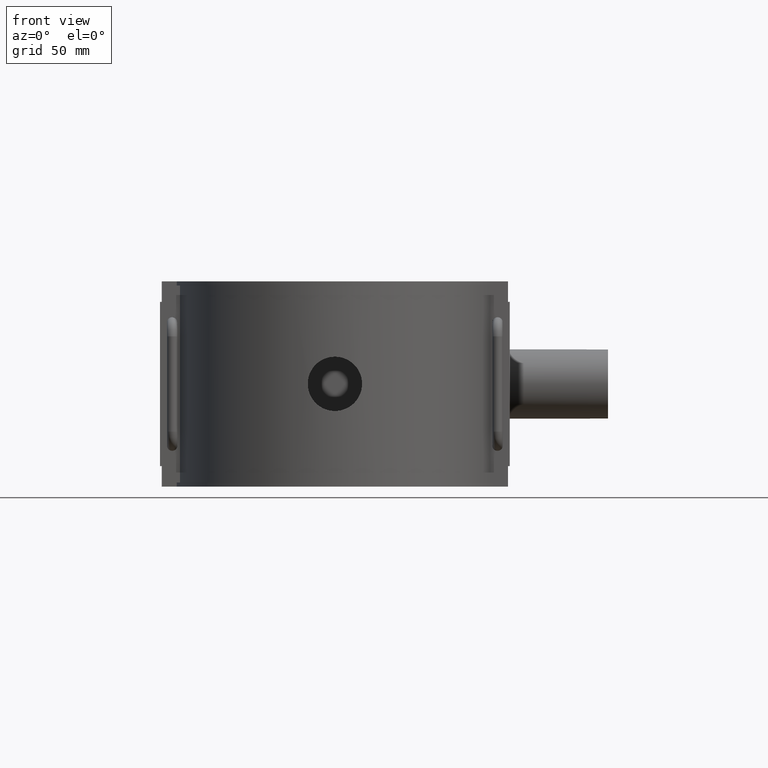
[diagram: clean part render]
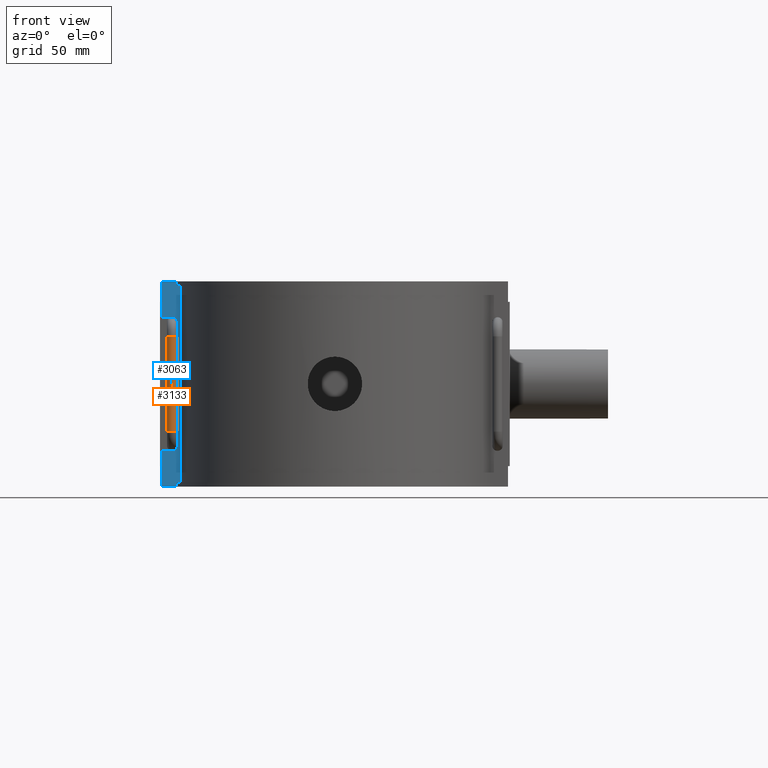
[diagram: same view with the hole feature highlighted: cylindrical wall and planar end face, labeled with their STEP entity ids]
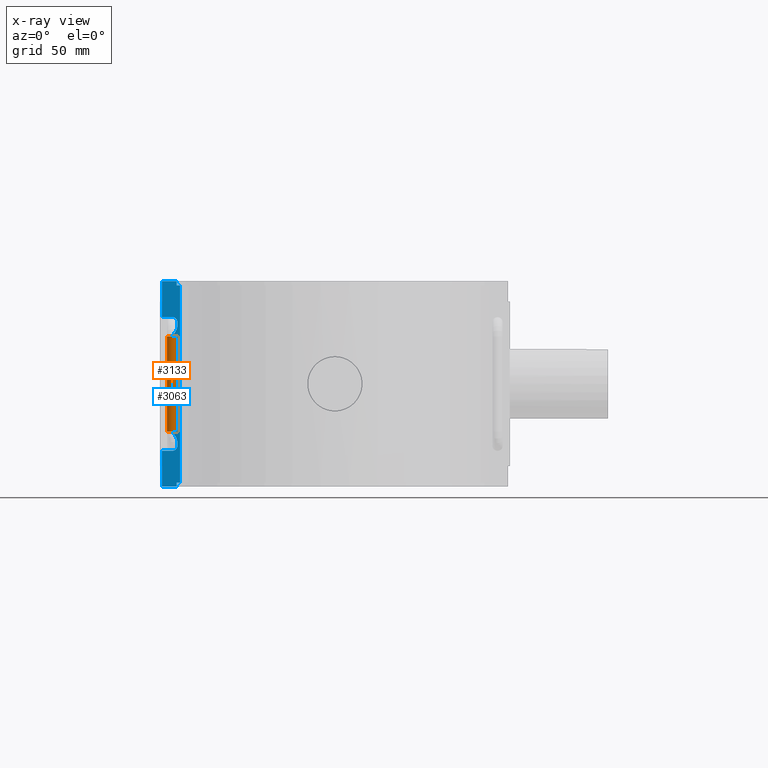
[diagram: x-ray of the same camera — body ghosted, the hole faces saturated]
A machine part, front view. The highlighted faces form one hole feature of diameter 6 mm: the cylindrical wall (entity #3133, orange) and its adjacent planar end face (entity #3063, blue) — they share a circular edge in the B-rep.
The next image is the same camera in x-ray (body ghosted, the hole faces saturated) — the bore reads through the body.
Wall:
#114=LINE('',#5230,#393);
#393=VECTOR('',#3730,54.7999999999999);
#776=CIRCLE('',#3362,3.);
#780=CIRCLE('',#3367,3.);
#986=FACE_OUTER_BOUND('',#1204,.T.);
#1204=EDGE_LOOP('',(#2647,#2648,#2649,#2650));
#1422=VERTEX_POINT('',#5216);
#1423=VERTEX_POINT('',#5229);
#1758=EDGE_CURVE('',#1423,#1422,#114,.T.);
#1921=EDGE_CURVE('',#1423,#1423,#776,.T.);
#1931=EDGE_CURVE('',#1422,#1422,#780,.T.);
#2647=ORIENTED_EDGE('',*,*,#1931,.F.);
#2648=ORIENTED_EDGE('',*,*,#1758,.F.);
#2649=ORIENTED_EDGE('',*,*,#1921,.T.);
#2650=ORIENTED_EDGE('',*,*,#1758,.T.);
#2997=CYLINDRICAL_SURFACE('',#3393,3.);
#3133=ADVANCED_FACE('',(#986),#2997,.T.);
#3362=AXIS2_PLACEMENT_3D('',#5945,#4000,#4001);
#3367=AXIS2_PLACEMENT_3D('',#6023,#4010,#4011);
#3393=AXIS2_PLACEMENT_3D('',#6106,#4076,#4077);
#3730=DIRECTION('',(0.,3.24152707919754E-16,1.));
#4000=DIRECTION('center_axis',(0.,6.12323399573677E-17,1.));
#4001=DIRECTION('ref_axis',(1.,0.,0.));
#4010=DIRECTION('center_axis',(0.,6.12323399573677E-17,1.));
#4011=DIRECTION('ref_axis',(1.,0.,0.));
#4076=DIRECTION('center_axis',(0.,3.24152707919754E-16,1.));
#4077=DIRECTION('ref_axis',(1.,0.,0.));
#5216=CARTESIAN_POINT('',(-93.5,-20.,27.3999999999999));
#5229=CARTESIAN_POINT('',(-93.5,-20.,-27.4));
#5230=CARTESIAN_POINT('',(-93.5,-20.,27.3999999999999));
#5945=CARTESIAN_POINT('Origin',(-93.5,-22.9999999999995,-27.4));
#6023=CARTESIAN_POINT('Origin',(-93.5,-22.9999999999994,27.3999999999999));
#6106=CARTESIAN_POINT('Origin',(-93.5,-22.9999999999994,27.3999999999999));
End face:
#101=LINE('',#5186,#380);
#102=LINE('',#5189,#381);
#108=LINE('',#5203,#387);
#109=LINE('',#5205,#388);
#110=LINE('',#5207,#389);
#111=LINE('',#5209,#390);
#112=LINE('',#5211,#391);
#113=LINE('',#5213,#392);
#114=LINE('',#5230,#393);
#115=LINE('',#5247,#394);
#116=LINE('',#5249,#395);
#117=LINE('',#5250,#396);
#380=VECTOR('',#3707,2.36);
#381=VECTOR('',#3710,1.86858273192826);
#387=VECTOR('',#3722,113.28);
#388=VECTOR('',#3723,1.86858273192826);
#389=VECTOR('',#3724,2.36);
#390=VECTOR('',#3725,8.6514195157679);
#391=VECTOR('',#3726,20.6);
#392=VECTOR('',#3727,6.02433467297777);
#393=VECTOR('',#3730,54.7999999999999);
#394=VECTOR('',#3733,6.02433467297777);
#395=VECTOR('',#3734,20.6);
#396=VECTOR('',#3735,8.6514195157679);
#623=PLANE('',#3282);
#746=CIRCLE('',#3283,3.);
#747=CIRCLE('',#3284,3.);
#916=FACE_OUTER_BOUND('',#1108,.T.);
#1108=EDGE_LOOP('',(#2294,#2295,#2296,#2297,#2298,#2299,#2300,#2301,#2302,
#2303,#2304,#2305,#2306,#2307,#2308,#2309));
#1293=B_SPLINE_CURVE_WITH_KNOTS('',3,(#5217,#5218,#5219,#5220,#5221,#5222,
#5223,#5224,#5225,#5226,#5227,#5228),.UNSPECIFIED.,.F.,.F.,(4,2,2,2,2,4),
(1.55418267469211,1.6414383672911,1.76844964601289,1.89546092473468,2.10094201058331,
2.30642309643194),.UNSPECIFIED.);
#1294=B_SPLINE_CURVE_WITH_KNOTS('',3,(#5232,#5233,#5234,#5235,#5236,#5237,
#5238,#5239,#5240,#5241,#5242,#5243),.UNSPECIFIED.,.F.,.F.,(4,2,2,2,2,4),
(0.,0.205481085848634,0.410962171697267,0.537973450419058,0.664984729140848,
0.752240421739824),.UNSPECIFIED.);
#1406=VERTEX_POINT('',#5179);
#1409=VERTEX_POINT('',#5184);
#1410=VERTEX_POINT('',#5188);
#1415=VERTEX_POINT('',#5202);
#1416=VERTEX_POINT('',#5204);
#1417=VERTEX_POINT('',#5206);
#1418=VERTEX_POINT('',#5208);
#1419=VERTEX_POINT('',#5210);
#1420=VERTEX_POINT('',#5212);
#1421=VERTEX_POINT('',#5214);
#1422=VERTEX_POINT('',#5216);
#1423=VERTEX_POINT('',#5229);
#1424=VERTEX_POINT('',#5231);
#1425=VERTEX_POINT('',#5244);
#1426=VERTEX_POINT('',#5246);
#1427=VERTEX_POINT('',#5248);
#1742=EDGE_CURVE('',#1406,#1409,#101,.T.);
#1743=EDGE_CURVE('',#1409,#1410,#102,.T.);
#1750=EDGE_CURVE('',#1410,#1415,#108,.T.);
#1751=EDGE_CURVE('',#1415,#1416,#109,.T.);
#1752=EDGE_CURVE('',#1416,#1417,#110,.T.);
#1753=EDGE_CURVE('',#1418,#1417,#111,.T.);
#1754=EDGE_CURVE('',#1419,#1418,#112,.T.);
#1755=EDGE_CURVE('',#1419,#1420,#113,.T.);
#1756=EDGE_CURVE('',#1420,#1421,#746,.T.);
#1757=EDGE_CURVE('',#1421,#1422,#1293,.T.);
#1758=EDGE_CURVE('',#1423,#1422,#114,.T.);
#1759=EDGE_CURVE('',#1423,#1424,#1294,.T.);
#1760=EDGE_CURVE('',#1424,#1425,#747,.T.);
#1761=EDGE_CURVE('',#1425,#1426,#115,.T.);
#1762=EDGE_CURVE('',#1427,#1426,#116,.T.);
#1763=EDGE_CURVE('',#1406,#1427,#117,.T.);
#2294=ORIENTED_EDGE('',*,*,#1742,.T.);
#2295=ORIENTED_EDGE('',*,*,#1743,.T.);
#2296=ORIENTED_EDGE('',*,*,#1750,.T.);
#2297=ORIENTED_EDGE('',*,*,#1751,.T.);
#2298=ORIENTED_EDGE('',*,*,#1752,.T.);
#2299=ORIENTED_EDGE('',*,*,#1753,.F.);
#2300=ORIENTED_EDGE('',*,*,#1754,.F.);
#2301=ORIENTED_EDGE('',*,*,#1755,.T.);
#2302=ORIENTED_EDGE('',*,*,#1756,.T.);
#2303=ORIENTED_EDGE('',*,*,#1757,.T.);
#2304=ORIENTED_EDGE('',*,*,#1758,.F.);
#2305=ORIENTED_EDGE('',*,*,#1759,.T.);
#2306=ORIENTED_EDGE('',*,*,#1760,.T.);
#2307=ORIENTED_EDGE('',*,*,#1761,.T.);
#2308=ORIENTED_EDGE('',*,*,#1762,.F.);
#2309=ORIENTED_EDGE('',*,*,#1763,.F.);
#3063=ADVANCED_FACE('',(#916),#623,.T.);
#3282=AXIS2_PLACEMENT_3D('',#5201,#3720,#3721);
#3283=AXIS2_PLACEMENT_3D('',#5215,#3728,#3729);
#3284=AXIS2_PLACEMENT_3D('',#5245,#3731,#3732);
#3707=DIRECTION('',(0.,0.,1.));
#3710=DIRECTION('',(1.,0.,0.));
#3720=DIRECTION('center_axis',(0.,-1.,0.));
#3721=DIRECTION('ref_axis',(1.,0.,0.));
#3722=DIRECTION('',(0.,0.,1.));
#3723=DIRECTION('',(-1.,0.,0.));
#3724=DIRECTION('',(0.,0.,1.));
#3725=DIRECTION('',(1.,0.,0.));
#3726=DIRECTION('',(0.,0.,1.));
#3727=DIRECTION('',(1.,0.,7.37158929503087E-16));
#3728=DIRECTION('center_axis',(0.,1.,0.));
#3729=DIRECTION('ref_axis',(-1.,0.,0.));
#3730=DIRECTION('',(0.,3.24152707919754E-16,1.));
#3731=DIRECTION('center_axis',(0.,1.,0.));
#3732=DIRECTION('ref_axis',(-1.,0.,0.));
#3733=DIRECTION('',(-1.,0.,0.));
#3734=DIRECTION('',(0.,0.,1.));
#3735=DIRECTION('',(-1.,0.,0.));
#5179=CARTESIAN_POINT('',(-90.8485804842321,-20.,-59.));
#5184=CARTESIAN_POINT('',(-90.8485804842321,-20.,-56.64));
#5186=CARTESIAN_POINT('',(-90.8485804842321,-20.,-59.));
#5188=CARTESIAN_POINT('',(-88.9799977523039,-20.,-56.64));
#5189=CARTESIAN_POINT('',(-49.75,-20.,-56.64));
#5201=CARTESIAN_POINT('Origin',(-99.5,-20.,0.));
#5202=CARTESIAN_POINT('',(-88.9799977523039,-20.,56.64));
#5203=CARTESIAN_POINT('',(-88.9799977523039,-20.,0.));
#5204=CARTESIAN_POINT('',(-90.8485804842321,-20.,56.64));
#5205=CARTESIAN_POINT('',(-49.75,-20.,56.64));
#5206=CARTESIAN_POINT('',(-90.8485804842321,-20.,59.));
#5207=CARTESIAN_POINT('',(-90.8485804842321,-20.,59.));
#5208=CARTESIAN_POINT('',(-99.5,-20.,59.));
#5209=CARTESIAN_POINT('',(-99.5,-20.,59.));
#5210=CARTESIAN_POINT('',(-99.5,-20.,38.4));
#5211=CARTESIAN_POINT('',(-99.5,-20.,0.));
#5212=CARTESIAN_POINT('',(-93.4756653270222,-20.,38.4));
#5213=CARTESIAN_POINT('',(-96.4878326635111,-20.,38.4));
#5214=CARTESIAN_POINT('',(-90.5929075566291,-20.,34.5695136140564));
#5215=CARTESIAN_POINT('Origin',(-93.4756653270222,-20.,35.4));
#5216=CARTESIAN_POINT('',(-93.5,-20.,27.3999999999999));
#5217=CARTESIAN_POINT('Ctrl Pts',(-90.5929075566291,-20.,34.5695136140564));
#5218=CARTESIAN_POINT('Ctrl Pts',(-90.5281744318221,-20.,34.259817704623));
#5219=CARTESIAN_POINT('Ctrl Pts',(-90.5,-20.,33.9358503070612));
#5220=CARTESIAN_POINT('Ctrl Pts',(-90.5,-20.,33.2216270693253));
#5221=CARTESIAN_POINT('Ctrl Pts',(-90.5580680938667,-20.,32.7627013613539));
#5222=CARTESIAN_POINT('Ctrl Pts',(-90.7771836493012,-20.,31.867336720585));
#5223=CARTESIAN_POINT('Ctrl Pts',(-90.9370980571854,-20.,31.4306208843288));
#5224=CARTESIAN_POINT('Ctrl Pts',(-91.389168796984,-20.,30.41870270221));
#5225=CARTESIAN_POINT('Ctrl Pts',(-91.770333637417,-20.,29.773838829126));
#5226=CARTESIAN_POINT('Ctrl Pts',(-92.6179526808834,-20.,28.5365468681763));
#5227=CARTESIAN_POINT('Ctrl Pts',(-93.0805634898982,-20.,27.9414902061385));
#5228=CARTESIAN_POINT('Ctrl Pts',(-93.5,-20.,27.3999999999999));
#5229=CARTESIAN_POINT('',(-93.5,-20.,-27.4));
#5230=CARTESIAN_POINT('',(-93.5,-20.,27.3999999999999));
#5231=CARTESIAN_POINT('',(-90.592907556629,-20.,-34.5695136140564));
#5232=CARTESIAN_POINT('Ctrl Pts',(-93.5,-20.,-27.4));
#5233=CARTESIAN_POINT('Ctrl Pts',(-93.0805634898982,-20.,-27.9414902061386));
#5234=CARTESIAN_POINT('Ctrl Pts',(-92.6179526808835,-20.,-28.5365468681764));
#5235=CARTESIAN_POINT('Ctrl Pts',(-91.770333637417,-20.,-29.7738388291262));
#5236=CARTESIAN_POINT('Ctrl Pts',(-91.389168796984,-20.,-30.4187027022101));
#5237=CARTESIAN_POINT('Ctrl Pts',(-90.9370980571854,-20.,-31.430620884329));
#5238=CARTESIAN_POINT('Ctrl Pts',(-90.7771836493012,-20.,-31.8673367205852));
#5239=CARTESIAN_POINT('Ctrl Pts',(-90.5580680938667,-20.,-32.7627013613541));
#5240=CARTESIAN_POINT('Ctrl Pts',(-90.5,-20.,-33.2216270693254));
#5241=CARTESIAN_POINT('Ctrl Pts',(-90.5,-20.,-33.9358503070613));
#5242=CARTESIAN_POINT('Ctrl Pts',(-90.5281744318221,-20.,-34.2598177046231));
#5243=CARTESIAN_POINT('Ctrl Pts',(-90.592907556629,-20.,-34.5695136140564));
#5244=CARTESIAN_POINT('',(-93.4756653270222,-20.,-38.4));
#5245=CARTESIAN_POINT('Origin',(-93.4756653270222,-20.,-35.4));
#5246=CARTESIAN_POINT('',(-99.5,-20.,-38.4));
#5247=CARTESIAN_POINT('',(-99.5,-20.,-38.4));
#5248=CARTESIAN_POINT('',(-99.5,-20.,-59.));
#5249=CARTESIAN_POINT('',(-99.5,-20.,0.));
#5250=CARTESIAN_POINT('',(-99.5,-20.,-59.));